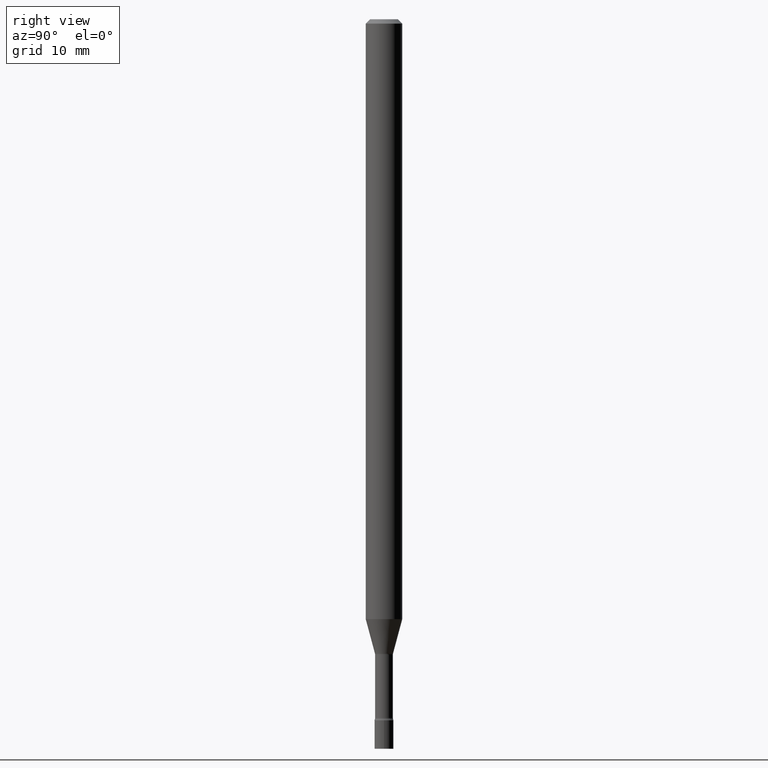
[diagram: clean part render]
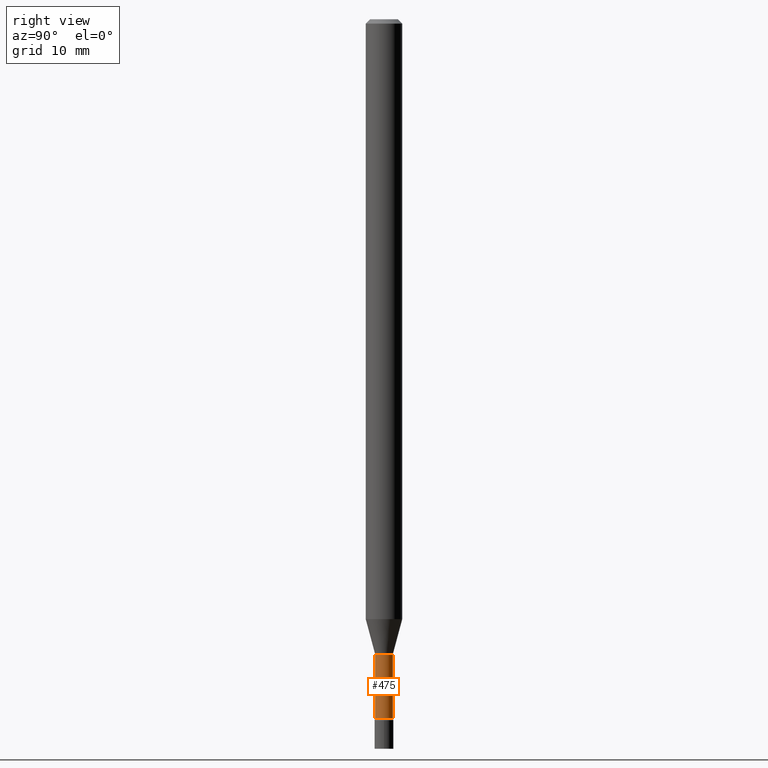
[diagram: same view with one face highlighted and labeled with its STEP entity id]
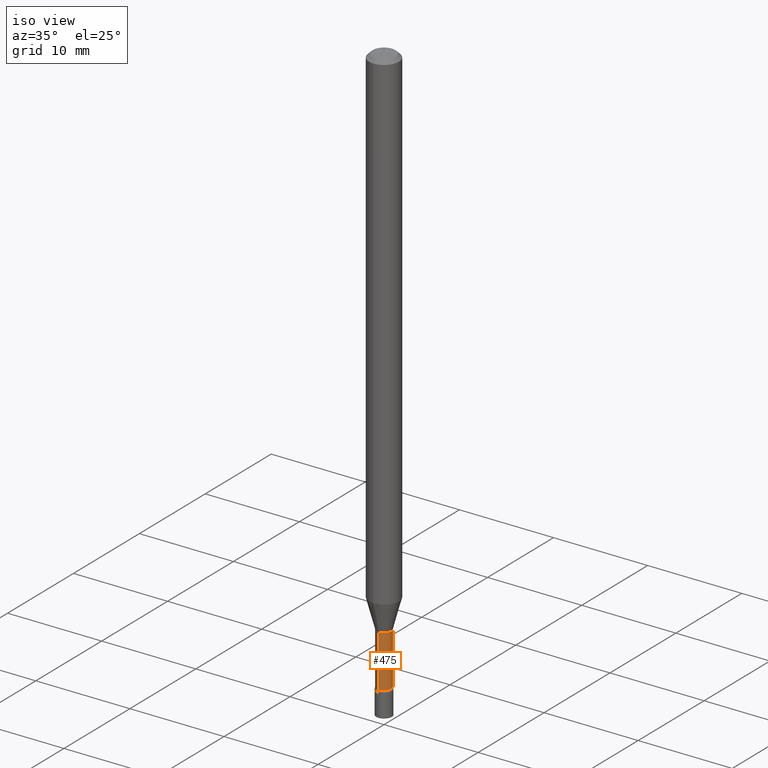
[diagram: same view with one face highlighted and labeled with its STEP entity id]
A machine part, right view. The second image highlights one B-rep face of the part: STEP entity #475.
A second angle (iso view) of the same face is appended — the face is thin or edge-on in the first view.
In plain terms, the highlighted cylindrical surface (edge-blend (fillet) strip) has radius 0.776 mm, axis along (-0, 0, 1).
Its self-contained STEP definition (entity closure, byte-faithful):
#5 = CYLINDRICAL_SURFACE ( 'NONE', #463, 0.03055000000000001464 ) ;
#32 = VERTEX_POINT ( 'NONE', #257 ) ;
#39 = EDGE_LOOP ( 'NONE', ( #457, #399, #45, #255 ) ) ;
#45 = ORIENTED_EDGE ( 'NONE', *, *, #437, .F. ) ;
#46 = CARTESIAN_POINT ( 'NONE',  ( 0.000000000000000000, 0.000000000000000000, 0.000000000000000000 ) ) ;
#53 = CIRCLE ( 'NONE', #492, 0.03055000000000002505 ) ;
#61 = EDGE_CURVE ( 'NONE', #121, #520, #230, .T. ) ;
#83 = DIRECTION ( 'NONE',  ( -2.445450430524897920E-29, 3.491507653834485069E-15, 1.000000000000000000 ) ) ;
#94 = EDGE_CURVE ( 'NONE', #205, #121, #53, .T. ) ;
#99 = DIRECTION ( 'NONE',  ( -2.445450430524897640E-29, 3.491507653834484674E-15, 1.000000000000000000 ) ) ;
#121 = VERTEX_POINT ( 'NONE', #508 ) ;
#152 = CARTESIAN_POINT ( 'NONE',  ( -2.133295098033155261E-16, -0.03055000000000001464, 1.066655588246435736E-16 ) ) ;
#169 = FACE_OUTER_BOUND ( 'NONE', #39, .T. ) ;
#176 = CARTESIAN_POINT ( 'NONE',  ( 2.170708057747692345E-16, 0.03054999999999239574, -2.176974787463811012 ) ) ;
#205 = VERTEX_POINT ( 'NONE', #242 ) ;
#209 = DIRECTION ( 'NONE',  ( -2.445450430524897920E-29, 3.491507653834485069E-15, 1.000000000000000000 ) ) ;
#230 = LINE ( 'NONE', #464, #249 ) ;
#242 = CARTESIAN_POINT ( 'NONE',  ( -2.133295098032570271E-16, -0.03055000000000838642, -2.394604224178627838 ) ) ;
#249 = VECTOR ( 'NONE', #99, 39.37007874015748143 ) ;
#255 = ORIENTED_EDGE ( 'NONE', *, *, #276, .F. ) ;
#257 = CARTESIAN_POINT ( 'NONE',  ( -2.133295098032622040E-16, -0.03055000000000760579, -2.176974787463811012 ) ) ;
#276 = EDGE_CURVE ( 'NONE', #205, #32, #514, .T. ) ;
#332 = CIRCLE ( 'NONE', #484, 0.03055000000000000424 ) ;
#367 = DIRECTION ( 'NONE',  ( -6.982962677686265922E-15, -1.000000000000000000, 0.000000000000000000 ) ) ;
#385 = CARTESIAN_POINT ( 'NONE',  ( 5.855885930954364622E-29, -8.360778976624068508E-15, -2.394604224178627838 ) ) ;
#396 = DIRECTION ( 'NONE',  ( -6.982962677686265922E-15, -1.000000000000000000, 3.491507653834485069E-15 ) ) ;
#399 = ORIENTED_EDGE ( 'NONE', *, *, #61, .T. ) ;
#437 = EDGE_CURVE ( 'NONE', #32, #520, #332, .T. ) ;
#449 = DIRECTION ( 'NONE',  ( -2.445450430524897640E-29, 3.491507653834484674E-15, 1.000000000000000000 ) ) ;
#457 = ORIENTED_EDGE ( 'NONE', *, *, #94, .T. ) ;
#459 = DIRECTION ( 'NONE',  ( -6.982962677686265922E-15, -1.000000000000000000, 0.000000000000000000 ) ) ;
#463 = AXIS2_PLACEMENT_3D ( 'NONE', #46, #83, #396 ) ;
#464 = CARTESIAN_POINT ( 'NONE',  ( 2.170708057747106862E-16, 0.03055000000000001464, -1.066655588246435736E-16 ) ) ;
#475 = ADVANCED_FACE ( 'NONE', ( #169 ), #5, .T. ) ;
#484 = AXIS2_PLACEMENT_3D ( 'NONE', #493, #209, #367 ) ;
#492 = AXIS2_PLACEMENT_3D ( 'NONE', #385, #500, #459 ) ;
#493 = CARTESIAN_POINT ( 'NONE',  ( 5.323683931245224620E-29, -7.600924132634597920E-15, -2.176974787463811012 ) ) ;
#500 = DIRECTION ( 'NONE',  ( -2.445450430524897920E-29, 3.491507653834485069E-15, 1.000000000000000000 ) ) ;
#501 = VECTOR ( 'NONE', #449, 39.37007874015748143 ) ;
#508 = CARTESIAN_POINT ( 'NONE',  ( 2.239985974484302864E-16, 0.03054999999999166369, -2.394604224178627838 ) ) ;
#514 = LINE ( 'NONE', #152, #501 ) ;
#520 = VERTEX_POINT ( 'NONE', #176 ) ;